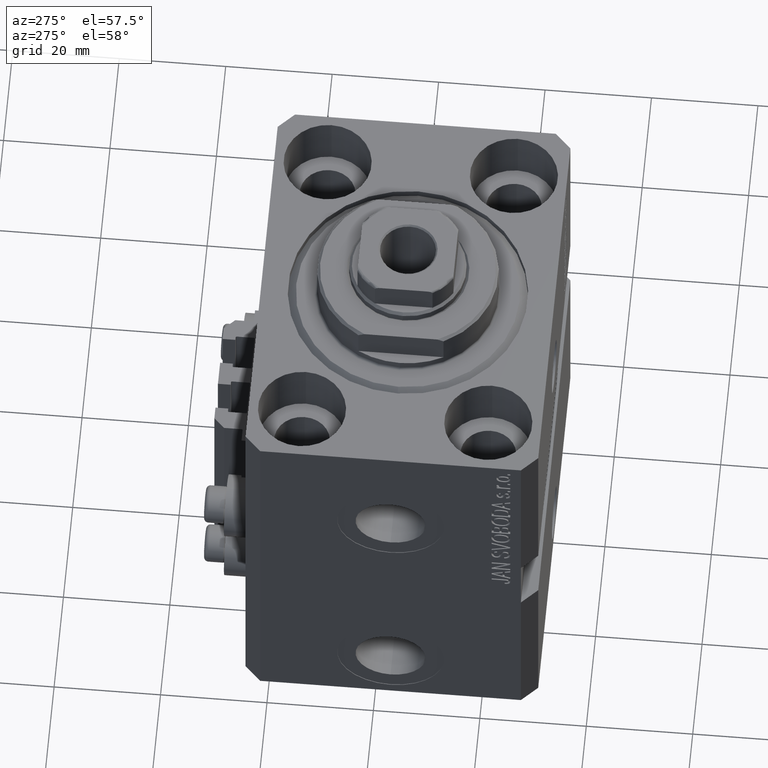
[diagram: clean part render]
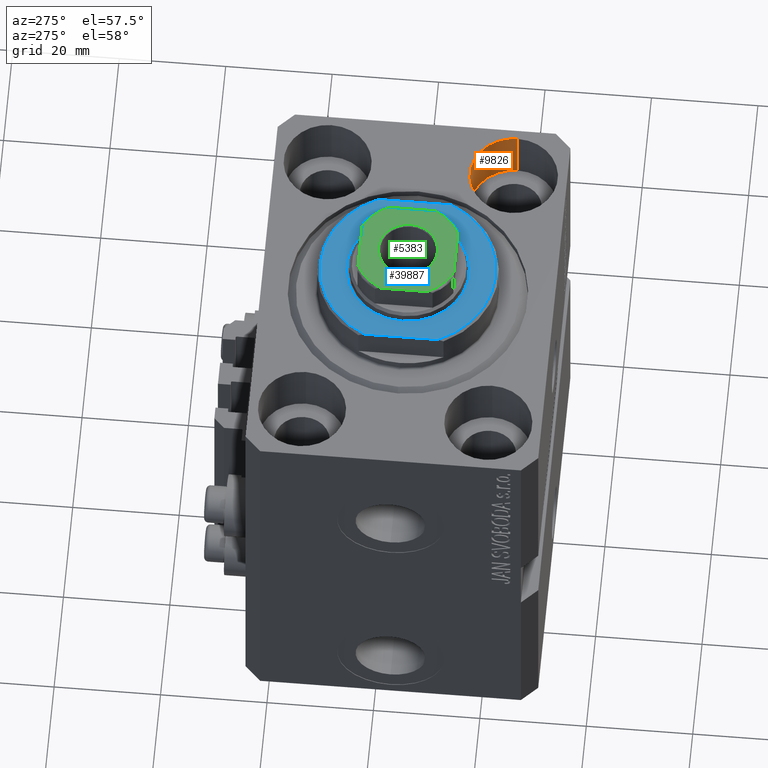
[diagram: same view with three faces highlighted in distinct colors, each labeled with its STEP entity id]
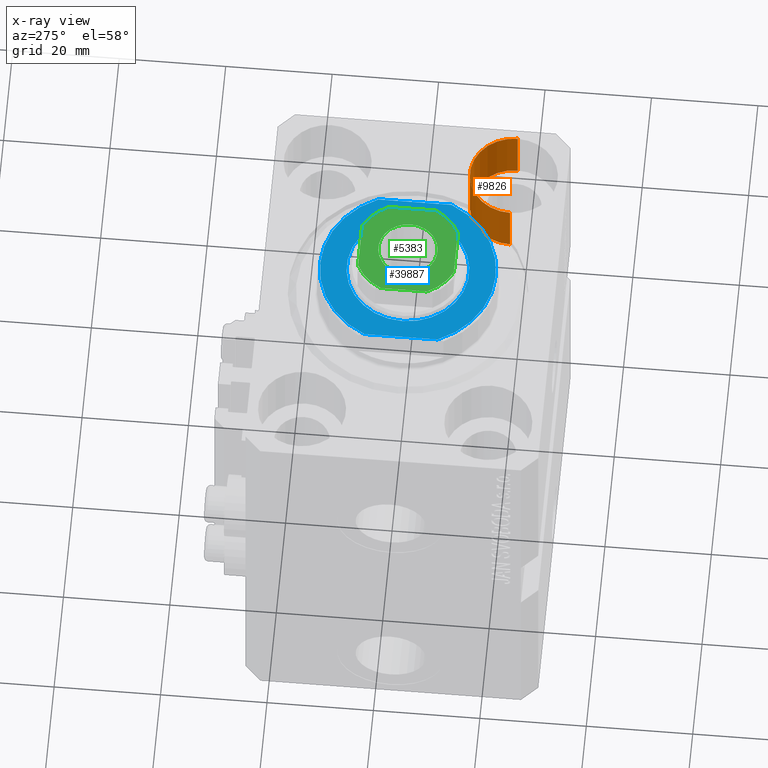
[diagram: x-ray of the same camera — body ghosted, the three highlighted faces saturated]
A machine part, auxiliary view with three faces highlighted in distinct colors.
The next image is the same camera in x-ray (body ghosted, the three faces saturated) — at least one of them is partly hidden behind the body in this view.
Their STEP definitions:

[orange] entity #9826 — the highlighted cylindrical surface (partial cylindrical patch) has radius 8.25 mm, axis along (0, 0, 1).
#449 = EDGE_LOOP ( 'NONE', ( #46539, #17424, #42076, #13111 ) ) ;
#1496 = CARTESIAN_POINT ( 'NONE',  ( 19.25000000000000000, -17.50000000000000000, 0.000000000000000000 ) ) ;
#3662 = DIRECTION ( 'NONE',  ( 0.000000000000000000, 0.000000000000000000, 1.000000000000000000 ) ) ;
#4016 = AXIS2_PLACEMENT_3D ( 'NONE', #14313, #3662, #15257 ) ;
#4712 = DIRECTION ( 'NONE',  ( -0.000000000000000000, -0.000000000000000000, 1.000000000000000000 ) ) ;
#6023 = AXIS2_PLACEMENT_3D ( 'NONE', #36912, #4712, #29796 ) ;
#6752 = AXIS2_PLACEMENT_3D ( 'NONE', #40237, #41176, #7797 ) ;
#7797 = DIRECTION ( 'NONE',  ( 1.000000000000000000, 0.000000000000000000, 0.000000000000000000 ) ) ;
#9128 = VERTEX_POINT ( 'NONE', #46848 ) ;
#9826 = ADVANCED_FACE ( 'NONE', ( #11573 ), #21985, .F. ) ;
#10453 = LINE ( 'NONE', #24892, #25107 ) ;
#11404 = EDGE_CURVE ( 'NONE', #9128, #42166, #30921, .T. ) ;
#11573 = FACE_OUTER_BOUND ( 'NONE', #449, .T. ) ;
#11625 = VERTEX_POINT ( 'NONE', #29046 ) ;
#13111 = ORIENTED_EDGE ( 'NONE', *, *, #11404, .T. ) ;
#13315 = LINE ( 'NONE', #31546, #16162 ) ;
#14313 = CARTESIAN_POINT ( 'NONE',  ( 27.50000000000000355, -17.50000000000000000, -11.00000000000000000 ) ) ;
#15257 = DIRECTION ( 'NONE',  ( 1.000000000000000000, 0.000000000000000000, 0.000000000000000000 ) ) ;
#16162 = VECTOR ( 'NONE', #46216, 1000.000000000000000 ) ;
#17424 = ORIENTED_EDGE ( 'NONE', *, *, #22101, .F. ) ;
#21985 = CYLINDRICAL_SURFACE ( 'NONE', #6023, 8.250000000000000000 ) ;
#22101 = EDGE_CURVE ( 'NONE', #11625, #34413, #28983, .T. ) ;
#22550 = CARTESIAN_POINT ( 'NONE',  ( 19.25000000000000000, -17.50000000000000000, -11.00000000000000000 ) ) ;
#24892 = CARTESIAN_POINT ( 'NONE',  ( 19.25000000000000000, -17.50000000000000000, -11.00000000000000000 ) ) ;
#25107 = VECTOR ( 'NONE', #43366, 1000.000000000000000 ) ;
#25619 = EDGE_CURVE ( 'NONE', #11625, #9128, #13315, .T. ) ;
#28983 = CIRCLE ( 'NONE', #4016, 8.250000000000000000 ) ;
#29046 = CARTESIAN_POINT ( 'NONE',  ( 35.75000000000000711, -17.50000000000000000, -11.00000000000000000 ) ) ;
#29796 = DIRECTION ( 'NONE',  ( 1.000000000000000000, 0.000000000000000000, 0.000000000000000000 ) ) ;
#30921 = CIRCLE ( 'NONE', #6752, 8.250000000000000000 ) ;
#31546 = CARTESIAN_POINT ( 'NONE',  ( 35.75000000000000711, -17.50000000000000000, -11.00000000000000000 ) ) ;
#34413 = VERTEX_POINT ( 'NONE', #22550 ) ;
#36912 = CARTESIAN_POINT ( 'NONE',  ( 27.50000000000000355, -17.50000000000000000, -11.00000000000000000 ) ) ;
#40237 = CARTESIAN_POINT ( 'NONE',  ( 27.50000000000000355, -17.50000000000000000, 0.000000000000000000 ) ) ;
#40590 = EDGE_CURVE ( 'NONE', #34413, #42166, #10453, .T. ) ;
#41176 = DIRECTION ( 'NONE',  ( 0.000000000000000000, 0.000000000000000000, 1.000000000000000000 ) ) ;
#42076 = ORIENTED_EDGE ( 'NONE', *, *, #25619, .T. ) ;
#42166 = VERTEX_POINT ( 'NONE', #1496 ) ;
#43366 = DIRECTION ( 'NONE',  ( -0.000000000000000000, -0.000000000000000000, 1.000000000000000000 ) ) ;
#46216 = DIRECTION ( 'NONE',  ( -0.000000000000000000, -0.000000000000000000, 1.000000000000000000 ) ) ;
#46539 = ORIENTED_EDGE ( 'NONE', *, *, #40590, .F. ) ;
#46848 = CARTESIAN_POINT ( 'NONE',  ( 35.75000000000000711, -17.50000000000000000, 0.000000000000000000 ) ) ;

[blue] entity #39887 — the highlighted planar face has unit normal (0, 0, 1).
#382 = CARTESIAN_POINT ( 'NONE',  ( 0.000000000000000000, 0.000000000000000000, -8.000000000000000000 ) ) ;
#745 = VECTOR ( 'NONE', #34720, 1000.000000000000000 ) ;
#1146 = EDGE_CURVE ( 'NONE', #32926, #29532, #33664, .T. ) ;
#1679 = CIRCLE ( 'NONE', #38705, 11.50000000000000355 ) ;
#4350 = DIRECTION ( 'NONE',  ( -1.000000000000000000, 0.000000000000000000, 0.000000000000000000 ) ) ;
#5613 = CARTESIAN_POINT ( 'NONE',  ( -15.00000000000000000, -42.42640687119285303, -8.000000000000000000 ) ) ;
#7128 = EDGE_CURVE ( 'NONE', #13592, #32926, #39238, .T. ) ;
#8140 = VERTEX_POINT ( 'NONE', #45920 ) ;
#8400 = CARTESIAN_POINT ( 'NONE',  ( 14.99999999999999645, -6.873863542433765517, -8.000000000000000000 ) ) ;
#8782 = EDGE_CURVE ( 'NONE', #29532, #10378, #10531, .T. ) ;
#9755 = AXIS2_PLACEMENT_3D ( 'NONE', #27963, #38640, #21332 ) ;
#10378 = VERTEX_POINT ( 'NONE', #32535 ) ;
#10513 = DIRECTION ( 'NONE',  ( -1.000000000000000000, 0.000000000000000000, 0.000000000000000000 ) ) ;
#10531 = CIRCLE ( 'NONE', #9755, 16.50000000000000000 ) ;
#12472 = LINE ( 'NONE', #5613, #745 ) ;
#12682 = EDGE_CURVE ( 'NONE', #13592, #10378, #12472, .T. ) ;
#13478 = PLANE ( 'NONE',  #39484 ) ;
#13592 = VERTEX_POINT ( 'NONE', #24151 ) ;
#16367 = DIRECTION ( 'NONE',  ( 0.000000000000000000, -1.000000000000000000, -0.000000000000000000 ) ) ;
#16960 = EDGE_LOOP ( 'NONE', ( #39463, #45341, #33075, #30292 ) ) ;
#18823 = AXIS2_PLACEMENT_3D ( 'NONE', #36796, #26592, #4350 ) ;
#19060 = EDGE_CURVE ( 'NONE', #29067, #8140, #44003, .T. ) ;
#21332 = DIRECTION ( 'NONE',  ( -1.000000000000000000, 0.000000000000000000, 0.000000000000000000 ) ) ;
#23142 = EDGE_LOOP ( 'NONE', ( #28897, #36675 ) ) ;
#24151 = CARTESIAN_POINT ( 'NONE',  ( -14.99999999999999645, 6.873863542433765517, -8.000000000000000000 ) ) ;
#24373 = FACE_OUTER_BOUND ( 'NONE', #16960, .T. ) ;
#25380 = VECTOR ( 'NONE', #16367, 1000.000000000000000 ) ;
#25652 = CARTESIAN_POINT ( 'NONE',  ( 0.000000000000000000, 0.000000000000000000, -8.000000000000000000 ) ) ;
#25941 = FACE_BOUND ( 'NONE', #23142, .T. ) ;
#26592 = DIRECTION ( 'NONE',  ( 0.000000000000000000, 0.000000000000000000, -1.000000000000000000 ) ) ;
#27963 = CARTESIAN_POINT ( 'NONE',  ( 0.000000000000000000, 0.000000000000000000, -8.000000000000000000 ) ) ;
#28881 = AXIS2_PLACEMENT_3D ( 'NONE', #25652, #36570, #10513 ) ;
#28897 = ORIENTED_EDGE ( 'NONE', *, *, #43148, .T. ) ;
#29067 = VERTEX_POINT ( 'NONE', #30117 ) ;
#29532 = VERTEX_POINT ( 'NONE', #8400 ) ;
#30117 = CARTESIAN_POINT ( 'NONE',  ( 11.50000000000000355, 1.408343819019456570E-15, -8.000000000000000000 ) ) ;
#30292 = ORIENTED_EDGE ( 'NONE', *, *, #12682, .F. ) ;
#31017 = DIRECTION ( 'NONE',  ( -0.000000000000000000, -0.000000000000000000, 1.000000000000000000 ) ) ;
#32535 = CARTESIAN_POINT ( 'NONE',  ( -14.99999999999999645, -6.873863542433765517, -8.000000000000000000 ) ) ;
#32926 = VERTEX_POINT ( 'NONE', #41655 ) ;
#33075 = ORIENTED_EDGE ( 'NONE', *, *, #8782, .T. ) ;
#33664 = LINE ( 'NONE', #40536, #25380 ) ;
#34720 = DIRECTION ( 'NONE',  ( -0.000000000000000000, -1.000000000000000000, -0.000000000000000000 ) ) ;
#36570 = DIRECTION ( 'NONE',  ( -0.000000000000000000, -0.000000000000000000, 1.000000000000000000 ) ) ;
#36675 = ORIENTED_EDGE ( 'NONE', *, *, #19060, .T. ) ;
#36796 = CARTESIAN_POINT ( 'NONE',  ( 0.000000000000000000, 0.000000000000000000, -8.000000000000000000 ) ) ;
#37446 = CARTESIAN_POINT ( 'NONE',  ( 0.000000000000000000, 0.000000000000000000, -8.000000000000000000 ) ) ;
#38640 = DIRECTION ( 'NONE',  ( 0.000000000000000000, 0.000000000000000000, -1.000000000000000000 ) ) ;
#38705 = AXIS2_PLACEMENT_3D ( 'NONE', #37446, #31017, #45466 ) ;
#39056 = DIRECTION ( 'NONE',  ( 0.000000000000000000, 0.000000000000000000, -1.000000000000000000 ) ) ;
#39238 = CIRCLE ( 'NONE', #18823, 16.50000000000000000 ) ;
#39463 = ORIENTED_EDGE ( 'NONE', *, *, #7128, .T. ) ;
#39484 = AXIS2_PLACEMENT_3D ( 'NONE', #382, #39056, #40154 ) ;
#39887 = ADVANCED_FACE ( 'NONE', ( #25941, #24373 ), #13478, .T. ) ;
#40154 = DIRECTION ( 'NONE',  ( -1.000000000000000000, 0.000000000000000000, -0.000000000000000000 ) ) ;
#40536 = CARTESIAN_POINT ( 'NONE',  ( 15.00000000000000000, -42.42640687119285303, -8.000000000000000000 ) ) ;
#41655 = CARTESIAN_POINT ( 'NONE',  ( 14.99999999999999645, 6.873863542433765517, -8.000000000000000000 ) ) ;
#43148 = EDGE_CURVE ( 'NONE', #8140, #29067, #1679, .T. ) ;
#44003 = CIRCLE ( 'NONE', #28881, 11.50000000000000355 ) ;
#45341 = ORIENTED_EDGE ( 'NONE', *, *, #1146, .T. ) ;
#45466 = DIRECTION ( 'NONE',  ( -1.000000000000000000, 0.000000000000000000, 0.000000000000000000 ) ) ;
#45920 = CARTESIAN_POINT ( 'NONE',  ( -11.50000000000000355, 0.000000000000000000, -8.000000000000000000 ) ) ;

[green] entity #5383 — the highlighted planar face has unit normal (0, 0, 1).
#141 = VERTEX_POINT ( 'NONE', #19204 ) ;
#439 = VECTOR ( 'NONE', #38965, 1000.000000000000000 ) ;
#615 = LINE ( 'NONE', #42593, #18292 ) ;
#940 = EDGE_CURVE ( 'NONE', #41668, #26111, #4162, .T. ) ;
#1359 = VERTEX_POINT ( 'NONE', #22706 ) ;
#1943 = FACE_BOUND ( 'NONE', #4428, .T. ) ;
#2579 = LINE ( 'NONE', #38799, #13237 ) ;
#2843 = CARTESIAN_POINT ( 'NONE',  ( 9.000000000000000000, 8.999999999999998224, 85.10000000000000853 ) ) ;
#3309 = EDGE_CURVE ( 'NONE', #46339, #18064, #27824, .T. ) ;
#4162 = CIRCLE ( 'NONE', #46505, 5.549999999999985612 ) ;
#4278 = CARTESIAN_POINT ( 'NONE',  ( 4.358898943540677529, 8.999999999999998224, 85.10000000000000853 ) ) ;
#4401 = CARTESIAN_POINT ( 'NONE',  ( -9.000000000000000000, -4.358898943540675752, 85.10000000000000853 ) ) ;
#4428 = EDGE_LOOP ( 'NONE', ( #17441, #16687 ) ) ;
#4645 = AXIS2_PLACEMENT_3D ( 'NONE', #31253, #20572, #17252 ) ;
#5383 = ADVANCED_FACE ( 'NONE', ( #1943, #41461 ), #37699, .T. ) ;
#6361 = DIRECTION ( 'NONE',  ( 9.637352644315595243E-17, -1.000000000000000000, 0.000000000000000000 ) ) ;
#6853 = VERTEX_POINT ( 'NONE', #4401 ) ;
#8189 = VERTEX_POINT ( 'NONE', #39274 ) ;
#8721 = ORIENTED_EDGE ( 'NONE', *, *, #43618, .T. ) ;
#8846 = CARTESIAN_POINT ( 'NONE',  ( 0.000000000000000000, 0.000000000000000000, 85.10000000000000853 ) ) ;
#8895 = CARTESIAN_POINT ( 'NONE',  ( -5.549999999999985612, 6.796789735267793031E-16, 85.10000000000000853 ) ) ;
#9412 = CARTESIAN_POINT ( 'NONE',  ( 0.000000000000000000, 0.000000000000000000, 85.10000000000000853 ) ) ;
#9832 = CARTESIAN_POINT ( 'NONE',  ( -9.000000000000000000, 8.999999999999998224, 85.10000000000000853 ) ) ;
#10938 = CIRCLE ( 'NONE', #17728, 10.00000000000000000 ) ;
#13237 = VECTOR ( 'NONE', #6361, 1000.000000000000000 ) ;
#15904 = CARTESIAN_POINT ( 'NONE',  ( 0.000000000000000000, 0.000000000000000000, 85.10000000000000853 ) ) ;
#16116 = EDGE_LOOP ( 'NONE', ( #17950, #41714, #19130, #8721, #46205, #40853, #44349, #17902 ) ) ;
#16687 = ORIENTED_EDGE ( 'NONE', *, *, #45306, .T. ) ;
#17252 = DIRECTION ( 'NONE',  ( 1.000000000000000000, 0.000000000000000000, 0.000000000000000000 ) ) ;
#17441 = ORIENTED_EDGE ( 'NONE', *, *, #940, .T. ) ;
#17728 = AXIS2_PLACEMENT_3D ( 'NONE', #19044, #36347, #43907 ) ;
#17902 = ORIENTED_EDGE ( 'NONE', *, *, #28735, .T. ) ;
#17950 = ORIENTED_EDGE ( 'NONE', *, *, #29087, .T. ) ;
#18064 = VERTEX_POINT ( 'NONE', #42959 ) ;
#18292 = VECTOR ( 'NONE', #36619, 1000.000000000000000 ) ;
#18726 = AXIS2_PLACEMENT_3D ( 'NONE', #38981, #31183, #38520 ) ;
#19044 = CARTESIAN_POINT ( 'NONE',  ( 0.000000000000000000, 0.000000000000000000, 85.10000000000000853 ) ) ;
#19065 = AXIS2_PLACEMENT_3D ( 'NONE', #9412, #41852, #35222 ) ;
#19130 = ORIENTED_EDGE ( 'NONE', *, *, #39934, .T. ) ;
#19204 = CARTESIAN_POINT ( 'NONE',  ( 4.358898943540671311, -9.000000000000001776, 85.10000000000000853 ) ) ;
#19462 = VERTEX_POINT ( 'NONE', #32021 ) ;
#20158 = DIRECTION ( 'NONE',  ( 0.000000000000000000, -0.000000000000000000, -1.000000000000000000 ) ) ;
#20208 = CIRCLE ( 'NONE', #18726, 10.00000000000000000 ) ;
#20572 = DIRECTION ( 'NONE',  ( -0.000000000000000000, 0.000000000000000000, 1.000000000000000000 ) ) ;
#20824 = DIRECTION ( 'NONE',  ( -9.637352644315595243E-17, 1.000000000000000000, -0.000000000000000000 ) ) ;
#22706 = CARTESIAN_POINT ( 'NONE',  ( 9.000000000000000000, 4.358898943540675752, 85.10000000000000853 ) ) ;
#23291 = DIRECTION ( 'NONE',  ( 1.000000000000000000, 0.000000000000000000, 0.000000000000000000 ) ) ;
#25162 = VERTEX_POINT ( 'NONE', #26411 ) ;
#26111 = VERTEX_POINT ( 'NONE', #8895 ) ;
#26411 = CARTESIAN_POINT ( 'NONE',  ( 9.000000000000001776, -4.358898943540675752, 85.10000000000000853 ) ) ;
#27017 = DIRECTION ( 'NONE',  ( 1.000000000000000000, 0.000000000000000000, 0.000000000000000000 ) ) ;
#27824 = LINE ( 'NONE', #9832, #439 ) ;
#28735 = EDGE_CURVE ( 'NONE', #18064, #8189, #10938, .T. ) ;
#29087 = EDGE_CURVE ( 'NONE', #8189, #6853, #2579, .T. ) ;
#29636 = CIRCLE ( 'NONE', #19065, 10.00000000000000000 ) ;
#30458 = CIRCLE ( 'NONE', #32725, 5.549999999999985612 ) ;
#31183 = DIRECTION ( 'NONE',  ( -0.000000000000000000, 0.000000000000000000, 1.000000000000000000 ) ) ;
#31253 = CARTESIAN_POINT ( 'NONE',  ( 0.000000000000000000, 0.000000000000000000, 85.10000000000000853 ) ) ;
#32021 = CARTESIAN_POINT ( 'NONE',  ( -4.358898943540671311, -9.000000000000001776, 85.10000000000000853 ) ) ;
#32022 = EDGE_CURVE ( 'NONE', #1359, #46339, #20208, .T. ) ;
#32725 = AXIS2_PLACEMENT_3D ( 'NONE', #34609, #20158, #45264 ) ;
#34609 = CARTESIAN_POINT ( 'NONE',  ( 0.000000000000000000, 0.000000000000000000, 85.10000000000000853 ) ) ;
#34828 = DIRECTION ( 'NONE',  ( -0.000000000000000000, 0.000000000000000000, 1.000000000000000000 ) ) ;
#35222 = DIRECTION ( 'NONE',  ( 1.000000000000000000, 0.000000000000000000, 0.000000000000000000 ) ) ;
#36347 = DIRECTION ( 'NONE',  ( -0.000000000000000000, 0.000000000000000000, 1.000000000000000000 ) ) ;
#36484 = VECTOR ( 'NONE', #20824, 1000.000000000000000 ) ;
#36619 = DIRECTION ( 'NONE',  ( 1.000000000000000000, 0.000000000000000000, 0.000000000000000000 ) ) ;
#37699 = PLANE ( 'NONE',  #45233 ) ;
#38520 = DIRECTION ( 'NONE',  ( 1.000000000000000000, 0.000000000000000000, 0.000000000000000000 ) ) ;
#38753 = CARTESIAN_POINT ( 'NONE',  ( 5.549999999999985612, 0.000000000000000000, 85.10000000000000853 ) ) ;
#38799 = CARTESIAN_POINT ( 'NONE',  ( -9.000000000000000000, 8.999999999999998224, 85.10000000000000853 ) ) ;
#38965 = DIRECTION ( 'NONE',  ( -1.000000000000000000, -0.000000000000000000, -0.000000000000000000 ) ) ;
#38981 = CARTESIAN_POINT ( 'NONE',  ( 0.000000000000000000, 0.000000000000000000, 85.10000000000000853 ) ) ;
#39274 = CARTESIAN_POINT ( 'NONE',  ( -9.000000000000000000, 4.358898943540674864, 85.10000000000000853 ) ) ;
#39934 = EDGE_CURVE ( 'NONE', #19462, #141, #615, .T. ) ;
#40853 = ORIENTED_EDGE ( 'NONE', *, *, #32022, .T. ) ;
#41461 = FACE_OUTER_BOUND ( 'NONE', #16116, .T. ) ;
#41614 = EDGE_CURVE ( 'NONE', #6853, #19462, #43185, .T. ) ;
#41668 = VERTEX_POINT ( 'NONE', #38753 ) ;
#41714 = ORIENTED_EDGE ( 'NONE', *, *, #41614, .T. ) ;
#41740 = DIRECTION ( 'NONE',  ( 0.000000000000000000, -0.000000000000000000, -1.000000000000000000 ) ) ;
#41852 = DIRECTION ( 'NONE',  ( -0.000000000000000000, 0.000000000000000000, 1.000000000000000000 ) ) ;
#42371 = LINE ( 'NONE', #2843, #36484 ) ;
#42593 = CARTESIAN_POINT ( 'NONE',  ( -8.999999999999998224, -9.000000000000001776, 85.10000000000000853 ) ) ;
#42959 = CARTESIAN_POINT ( 'NONE',  ( -4.358898943540678417, 8.999999999999998224, 85.10000000000000853 ) ) ;
#43185 = CIRCLE ( 'NONE', #4645, 10.00000000000000000 ) ;
#43618 = EDGE_CURVE ( 'NONE', #141, #25162, #29636, .T. ) ;
#43907 = DIRECTION ( 'NONE',  ( 1.000000000000000000, 0.000000000000000000, 0.000000000000000000 ) ) ;
#44248 = EDGE_CURVE ( 'NONE', #25162, #1359, #42371, .T. ) ;
#44349 = ORIENTED_EDGE ( 'NONE', *, *, #3309, .T. ) ;
#45233 = AXIS2_PLACEMENT_3D ( 'NONE', #15904, #34828, #27017 ) ;
#45264 = DIRECTION ( 'NONE',  ( 1.000000000000000000, 0.000000000000000000, 0.000000000000000000 ) ) ;
#45306 = EDGE_CURVE ( 'NONE', #26111, #41668, #30458, .T. ) ;
#46205 = ORIENTED_EDGE ( 'NONE', *, *, #44248, .T. ) ;
#46339 = VERTEX_POINT ( 'NONE', #4278 ) ;
#46505 = AXIS2_PLACEMENT_3D ( 'NONE', #8846, #41740, #23291 ) ;